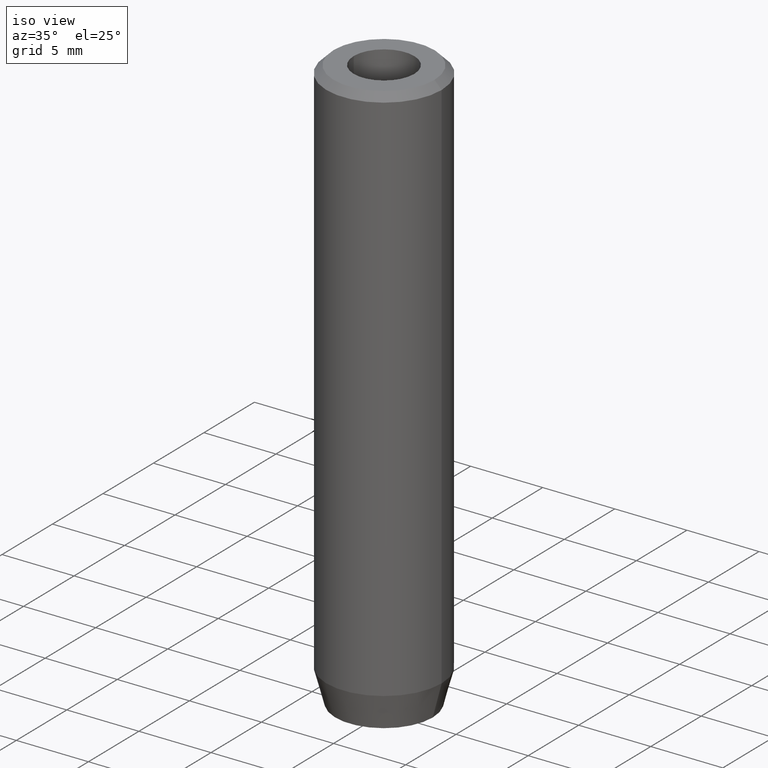
[diagram: clean part render]
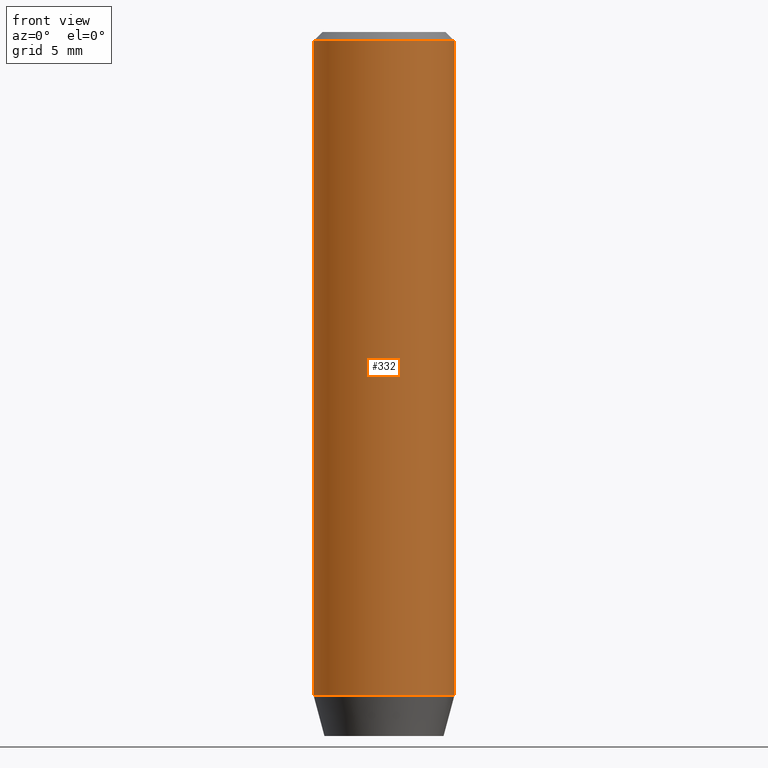
[diagram: tour spotlight — one face highlighted and labeled with its STEP entity id]
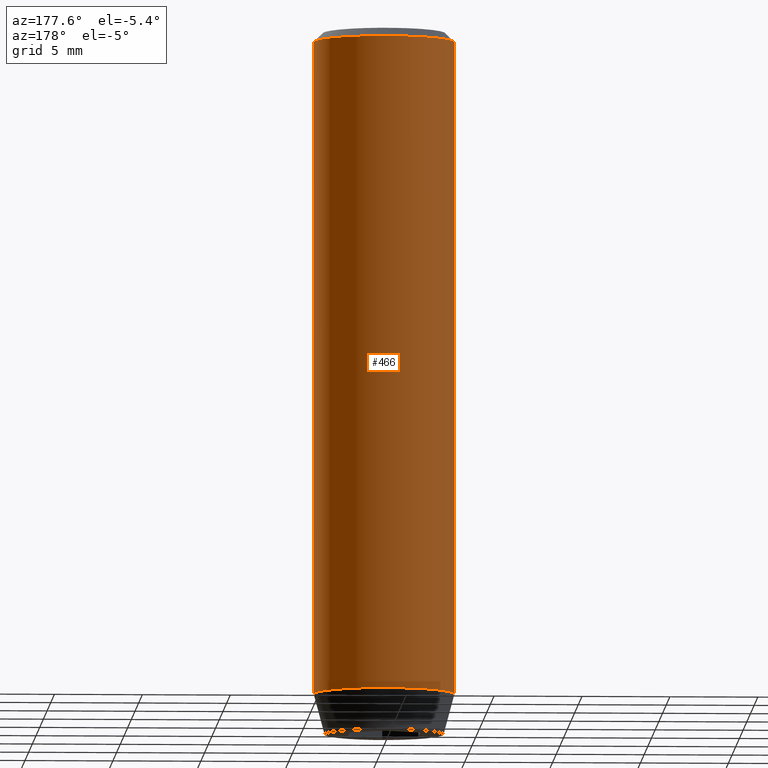
[diagram: tour spotlight — one face highlighted and labeled with its STEP entity id]
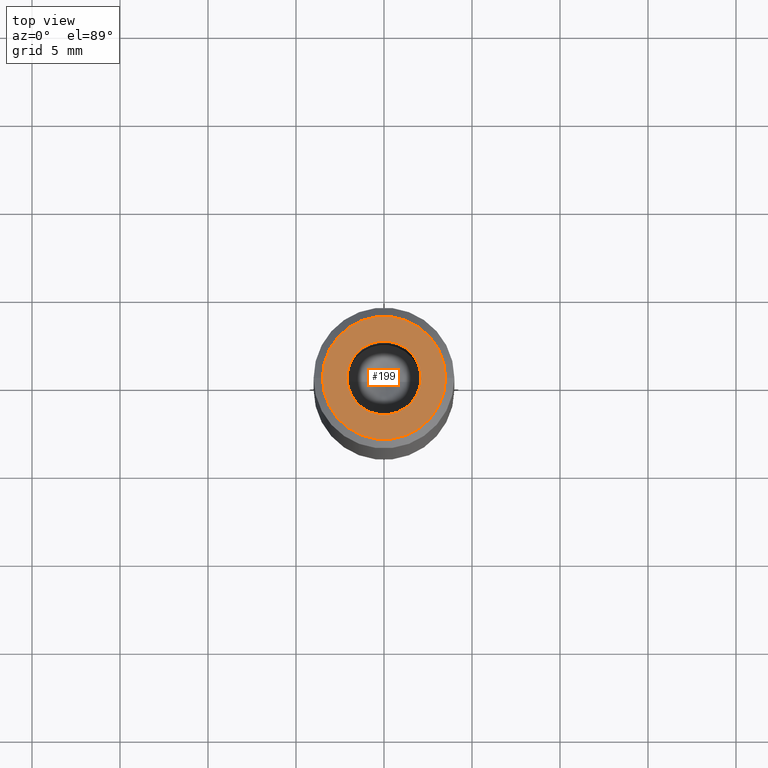
[diagram: tour spotlight — one face highlighted and labeled with its STEP entity id]
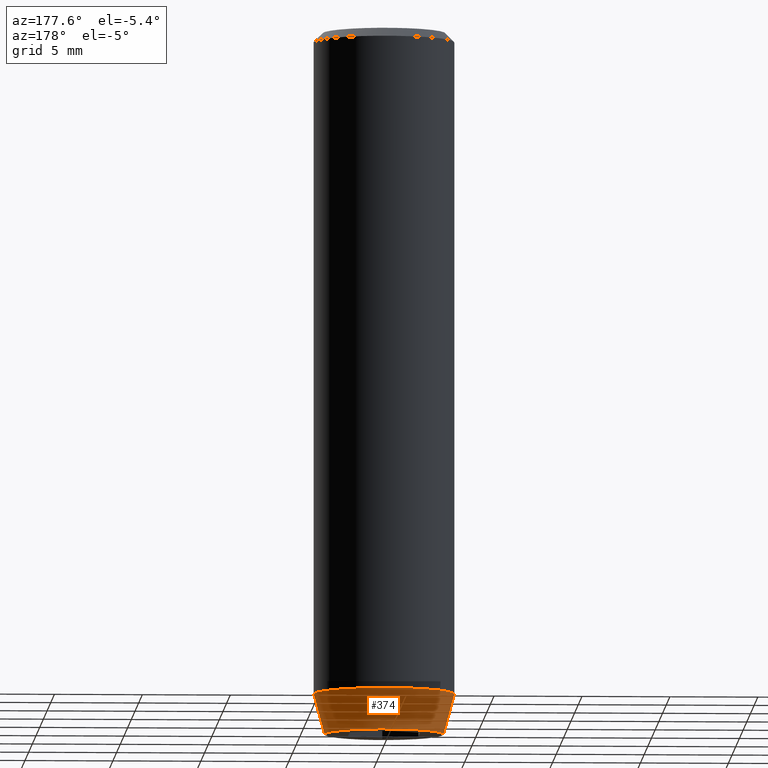
[diagram: tour spotlight — one face highlighted and labeled with its STEP entity id]
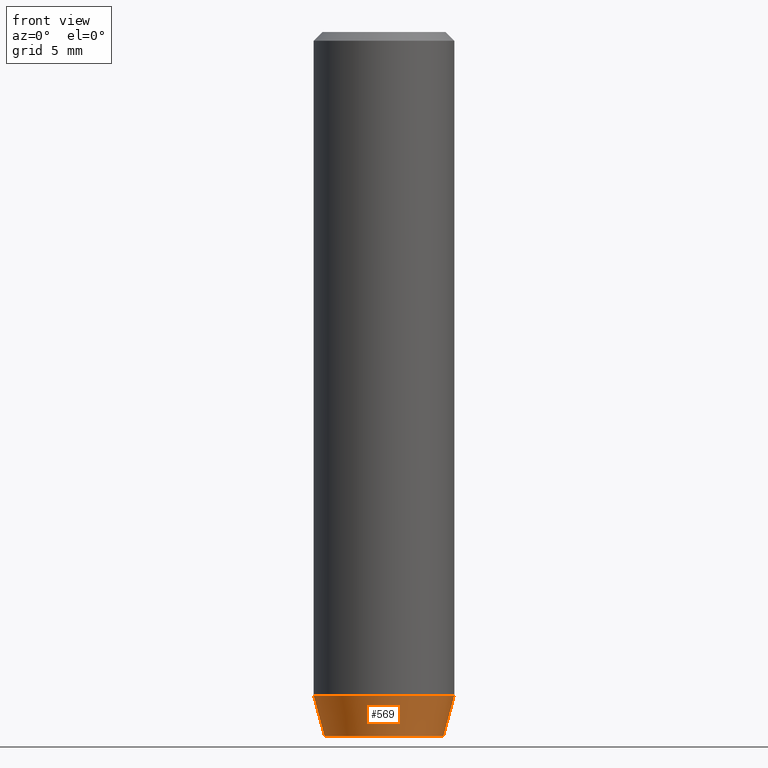
[diagram: tour spotlight — one face highlighted and labeled with its STEP entity id]
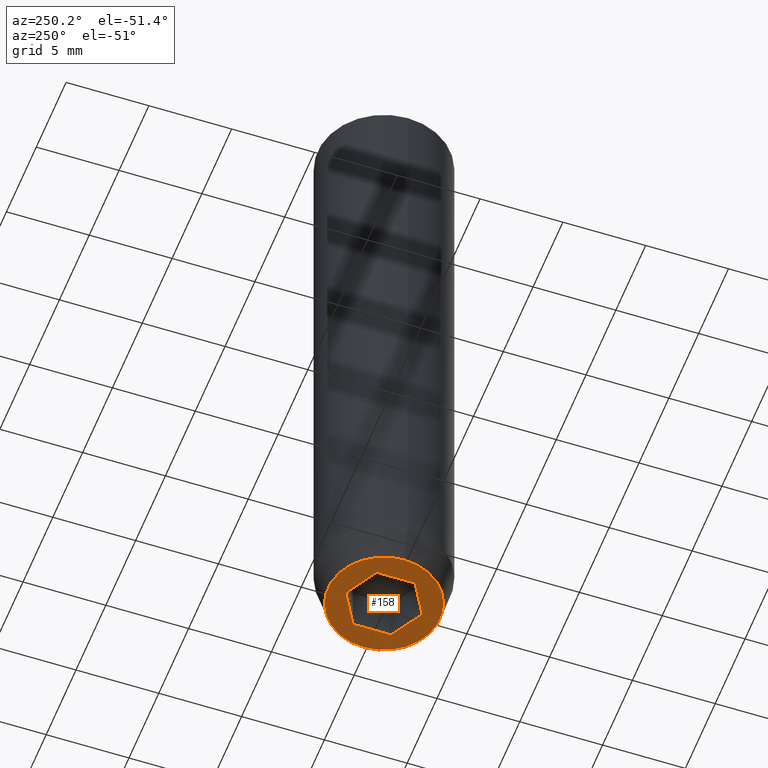
[diagram: tour spotlight — one face highlighted and labeled with its STEP entity id]
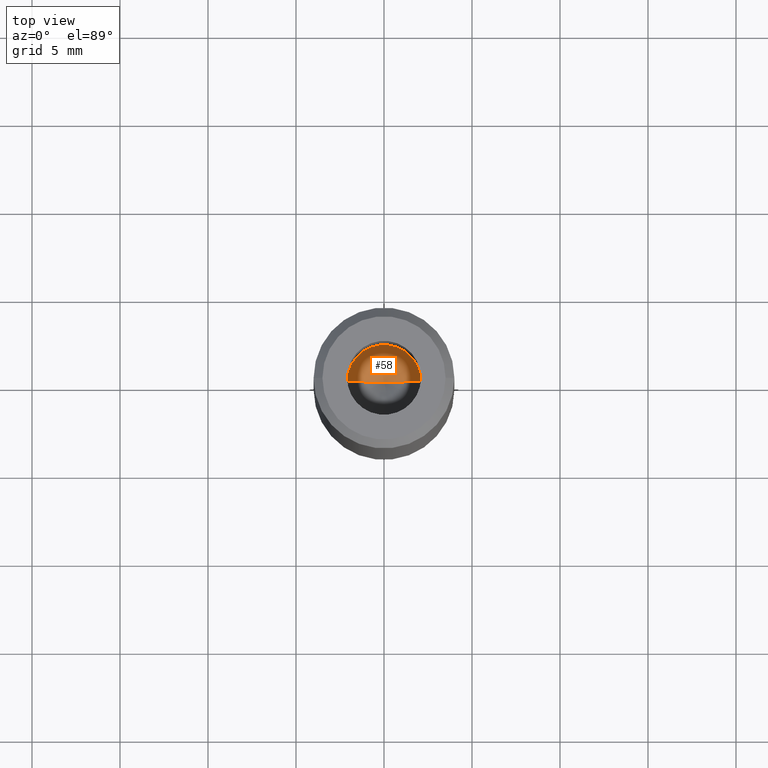
[diagram: tour spotlight — one face highlighted and labeled with its STEP entity id]
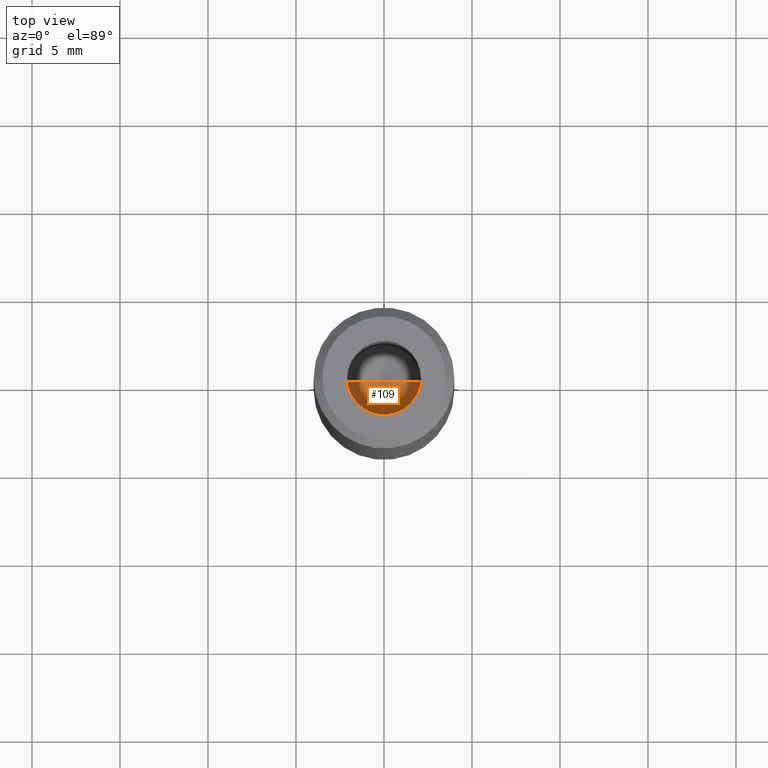
[diagram: tour spotlight — one face highlighted and labeled with its STEP entity id]
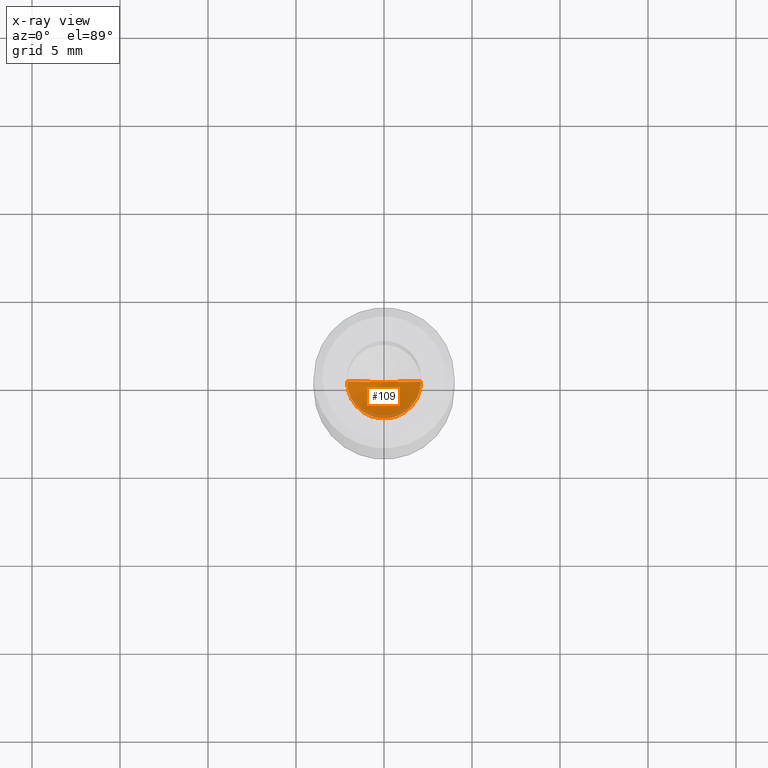
[diagram: x-ray of the same camera — body ghosted, this tour face saturated]
A machine part: a face-by-face anatomy tour. The part has 19 B-rep faces; the first image is the clean iso view, then the 8 largest visible faces are spotlighted one at a time (largest first), each with its STEP entity span.

Face 1 — front view, entity #332. In plain terms, the highlighted cylindrical surface (partial cylindrical patch) has radius 4 mm, axis along (-0, -0, 1).
Definition (entity closure, byte-faithful):
#16 = DIRECTION ( 'NONE',  ( -0.000000000000000000, -0.000000000000000000, 1.000000000000000000 ) ) ;
#30 = CARTESIAN_POINT ( 'NONE',  ( -4.000000000000000000, 4.898587196589412829E-16, -37.69999999999999574 ) ) ;
#46 = ORIENTED_EDGE ( 'NONE', *, *, #51, .T. ) ;
#48 = CARTESIAN_POINT ( 'NONE',  ( 4.000000000000000000, 0.000000000000000000, 0.000000000000000000 ) ) ;
#51 = EDGE_CURVE ( 'NONE', #262, #111, #400, .T. ) ;
#68 = DIRECTION ( 'NONE',  ( 0.000000000000000000, 0.000000000000000000, -1.000000000000000000 ) ) ;
#70 = CARTESIAN_POINT ( 'NONE',  ( -4.000000000000000000, 4.898587196589412829E-16, 0.000000000000000000 ) ) ;
#82 = EDGE_CURVE ( 'NONE', #234, #111, #206, .T. ) ;
#98 = CYLINDRICAL_SURFACE ( 'NONE', #293, 4.000000000000000000 ) ;
#111 = VERTEX_POINT ( 'NONE', #306 ) ;
#131 = LINE ( 'NONE', #48, #144 ) ;
#136 = ORIENTED_EDGE ( 'NONE', *, *, #578, .T. ) ;
#144 = VECTOR ( 'NONE', #239, 1000.000000000000000 ) ;
#178 = ORIENTED_EDGE ( 'NONE', *, *, #300, .T. ) ;
#186 = CARTESIAN_POINT ( 'NONE',  ( 0.000000000000000000, 0.000000000000000000, 0.000000000000000000 ) ) ;
#194 = AXIS2_PLACEMENT_3D ( 'NONE', #522, #302, #475 ) ;
#206 = LINE ( 'NONE', #70, #362 ) ;
#234 = VERTEX_POINT ( 'NONE', #30 ) ;
#239 = DIRECTION ( 'NONE',  ( -0.000000000000000000, -0.000000000000000000, 1.000000000000000000 ) ) ;
#262 = VERTEX_POINT ( 'NONE', #493 ) ;
#292 = DIRECTION ( 'NONE',  ( 1.000000000000000000, 0.000000000000000000, 0.000000000000000000 ) ) ;
#293 = AXIS2_PLACEMENT_3D ( 'NONE', #186, #583, #454 ) ;
#300 = EDGE_CURVE ( 'NONE', #471, #262, #131, .T. ) ;
#302 = DIRECTION ( 'NONE',  ( -0.000000000000000000, -0.000000000000000000, 1.000000000000000000 ) ) ;
#306 = CARTESIAN_POINT ( 'NONE',  ( -4.000000000000000000, 4.898587196589412829E-16, -0.4999999999999935052 ) ) ;
#310 = ORIENTED_EDGE ( 'NONE', *, *, #82, .F. ) ;
#332 = ADVANCED_FACE ( 'NONE', ( #404 ), #98, .T. ) ;
#361 = CIRCLE ( 'NONE', #194, 4.000000000000000000 ) ;
#362 = VECTOR ( 'NONE', #16, 1000.000000000000000 ) ;
#389 = CARTESIAN_POINT ( 'NONE',  ( 4.000000000000000000, 0.000000000000000000, -37.69999999999999574 ) ) ;
#400 = CIRCLE ( 'NONE', #557, 4.000000000000000000 ) ;
#404 = FACE_OUTER_BOUND ( 'NONE', #413, .T. ) ;
#413 = EDGE_LOOP ( 'NONE', ( #310, #136, #178, #46 ) ) ;
#454 = DIRECTION ( 'NONE',  ( 1.000000000000000000, 0.000000000000000000, 0.000000000000000000 ) ) ;
#469 = CARTESIAN_POINT ( 'NONE',  ( 0.000000000000000000, 0.000000000000000000, -0.4999999999999935052 ) ) ;
#471 = VERTEX_POINT ( 'NONE', #389 ) ;
#475 = DIRECTION ( 'NONE',  ( 1.000000000000000000, 0.000000000000000000, 0.000000000000000000 ) ) ;
#493 = CARTESIAN_POINT ( 'NONE',  ( 4.000000000000000000, 0.000000000000000000, -0.4999999999999935052 ) ) ;
#522 = CARTESIAN_POINT ( 'NONE',  ( 0.000000000000000000, 0.000000000000000000, -37.69999999999999574 ) ) ;
#557 = AXIS2_PLACEMENT_3D ( 'NONE', #469, #68, #292 ) ;
#578 = EDGE_CURVE ( 'NONE', #234, #471, #361, .T. ) ;
#583 = DIRECTION ( 'NONE',  ( -0.000000000000000000, -0.000000000000000000, 1.000000000000000000 ) ) ;

Face 2 — auxiliary view, entity #466. In plain terms, the highlighted cylindrical surface (partial cylindrical patch) has radius 4 mm, axis along (-0, -0, 1).
Definition (entity closure, byte-faithful):
#16 = DIRECTION ( 'NONE',  ( -0.000000000000000000, -0.000000000000000000, 1.000000000000000000 ) ) ;
#30 = CARTESIAN_POINT ( 'NONE',  ( -4.000000000000000000, 4.898587196589412829E-16, -37.69999999999999574 ) ) ;
#48 = CARTESIAN_POINT ( 'NONE',  ( 4.000000000000000000, 0.000000000000000000, 0.000000000000000000 ) ) ;
#70 = CARTESIAN_POINT ( 'NONE',  ( -4.000000000000000000, 4.898587196589412829E-16, 0.000000000000000000 ) ) ;
#82 = EDGE_CURVE ( 'NONE', #234, #111, #206, .T. ) ;
#84 = CYLINDRICAL_SURFACE ( 'NONE', #87, 4.000000000000000000 ) ;
#87 = AXIS2_PLACEMENT_3D ( 'NONE', #213, #161, #118 ) ;
#111 = VERTEX_POINT ( 'NONE', #306 ) ;
#118 = DIRECTION ( 'NONE',  ( 1.000000000000000000, 0.000000000000000000, 0.000000000000000000 ) ) ;
#128 = DIRECTION ( 'NONE',  ( 1.000000000000000000, 0.000000000000000000, 0.000000000000000000 ) ) ;
#131 = LINE ( 'NONE', #48, #144 ) ;
#144 = VECTOR ( 'NONE', #239, 1000.000000000000000 ) ;
#161 = DIRECTION ( 'NONE',  ( -0.000000000000000000, -0.000000000000000000, 1.000000000000000000 ) ) ;
#170 = CIRCLE ( 'NONE', #256, 4.000000000000000000 ) ;
#188 = EDGE_CURVE ( 'NONE', #471, #234, #170, .T. ) ;
#192 = ORIENTED_EDGE ( 'NONE', *, *, #300, .F. ) ;
#206 = LINE ( 'NONE', #70, #362 ) ;
#213 = CARTESIAN_POINT ( 'NONE',  ( 0.000000000000000000, 0.000000000000000000, 0.000000000000000000 ) ) ;
#217 = EDGE_CURVE ( 'NONE', #111, #262, #269, .T. ) ;
#234 = VERTEX_POINT ( 'NONE', #30 ) ;
#239 = DIRECTION ( 'NONE',  ( -0.000000000000000000, -0.000000000000000000, 1.000000000000000000 ) ) ;
#252 = ORIENTED_EDGE ( 'NONE', *, *, #82, .T. ) ;
#256 = AXIS2_PLACEMENT_3D ( 'NONE', #351, #440, #128 ) ;
#262 = VERTEX_POINT ( 'NONE', #493 ) ;
#269 = CIRCLE ( 'NONE', #586, 4.000000000000000000 ) ;
#300 = EDGE_CURVE ( 'NONE', #471, #262, #131, .T. ) ;
#306 = CARTESIAN_POINT ( 'NONE',  ( -4.000000000000000000, 4.898587196589412829E-16, -0.4999999999999935052 ) ) ;
#312 = CARTESIAN_POINT ( 'NONE',  ( 0.000000000000000000, 0.000000000000000000, -0.4999999999999935052 ) ) ;
#351 = CARTESIAN_POINT ( 'NONE',  ( 0.000000000000000000, 0.000000000000000000, -37.69999999999999574 ) ) ;
#357 = DIRECTION ( 'NONE',  ( 0.000000000000000000, 0.000000000000000000, -1.000000000000000000 ) ) ;
#358 = FACE_OUTER_BOUND ( 'NONE', #545, .T. ) ;
#362 = VECTOR ( 'NONE', #16, 1000.000000000000000 ) ;
#389 = CARTESIAN_POINT ( 'NONE',  ( 4.000000000000000000, 0.000000000000000000, -37.69999999999999574 ) ) ;
#417 = ORIENTED_EDGE ( 'NONE', *, *, #188, .T. ) ;
#429 = ORIENTED_EDGE ( 'NONE', *, *, #217, .T. ) ;
#440 = DIRECTION ( 'NONE',  ( -0.000000000000000000, -0.000000000000000000, 1.000000000000000000 ) ) ;
#466 = ADVANCED_FACE ( 'NONE', ( #358 ), #84, .T. ) ;
#471 = VERTEX_POINT ( 'NONE', #389 ) ;
#493 = CARTESIAN_POINT ( 'NONE',  ( 4.000000000000000000, 0.000000000000000000, -0.4999999999999935052 ) ) ;
#545 = EDGE_LOOP ( 'NONE', ( #417, #252, #429, #192 ) ) ;
#579 = DIRECTION ( 'NONE',  ( 1.000000000000000000, 0.000000000000000000, 0.000000000000000000 ) ) ;
#586 = AXIS2_PLACEMENT_3D ( 'NONE', #312, #357, #579 ) ;

Face 3 — top view, entity #199. In plain terms, the highlighted planar face has unit normal (0, -0, 1).
Definition (entity closure, byte-faithful):
#14 = ORIENTED_EDGE ( 'NONE', *, *, #120, .T. ) ;
#26 = CARTESIAN_POINT ( 'NONE',  ( 2.099999999999998757, 0.000000000000000000, -1.990051048614449116E-16 ) ) ;
#37 = CARTESIAN_POINT ( 'NONE',  ( -2.099999999999998757, 2.571758278209439985E-16, -1.990051048614449116E-16 ) ) ;
#52 = AXIS2_PLACEMENT_3D ( 'NONE', #272, #182, #137 ) ;
#80 = DIRECTION ( 'NONE',  ( -0.000000000000000000, -0.000000000000000000, 1.000000000000000000 ) ) ;
#83 = DIRECTION ( 'NONE',  ( 1.000000000000000000, 0.000000000000000000, 0.000000000000000000 ) ) ;
#102 = ORIENTED_EDGE ( 'NONE', *, *, #537, .F. ) ;
#108 = ORIENTED_EDGE ( 'NONE', *, *, #366, .F. ) ;
#110 = VERTEX_POINT ( 'NONE', #26 ) ;
#120 = EDGE_CURVE ( 'NONE', #247, #229, #303, .T. ) ;
#122 = DIRECTION ( 'NONE',  ( -0.000000000000000000, -0.000000000000000000, 1.000000000000000000 ) ) ;
#137 = DIRECTION ( 'NONE',  ( 1.000000000000000000, 0.000000000000000000, 0.000000000000000000 ) ) ;
#162 = FACE_OUTER_BOUND ( 'NONE', #399, .T. ) ;
#173 = PLANE ( 'NONE',  #244 ) ;
#176 = CARTESIAN_POINT ( 'NONE',  ( 0.000000000000000000, 0.000000000000000000, 0.000000000000000000 ) ) ;
#182 = DIRECTION ( 'NONE',  ( -0.000000000000000000, -0.000000000000000000, 1.000000000000000000 ) ) ;
#183 = AXIS2_PLACEMENT_3D ( 'NONE', #566, #122, #568 ) ;
#199 = ADVANCED_FACE ( 'NONE', ( #531, #162 ), #173, .T. ) ;
#205 = EDGE_CURVE ( 'NONE', #229, #247, #442, .T. ) ;
#214 = VERTEX_POINT ( 'NONE', #37 ) ;
#222 = CARTESIAN_POINT ( 'NONE',  ( 0.000000000000000000, 0.000000000000000000, 0.000000000000000000 ) ) ;
#229 = VERTEX_POINT ( 'NONE', #527 ) ;
#244 = AXIS2_PLACEMENT_3D ( 'NONE', #176, #348, #570 ) ;
#247 = VERTEX_POINT ( 'NONE', #582 ) ;
#249 = ORIENTED_EDGE ( 'NONE', *, *, #205, .T. ) ;
#265 = DIRECTION ( 'NONE',  ( 1.000000000000000000, 0.000000000000000000, 0.000000000000000000 ) ) ;
#272 = CARTESIAN_POINT ( 'NONE',  ( 0.000000000000000000, 0.000000000000000000, -1.990051048614449116E-16 ) ) ;
#285 = CIRCLE ( 'NONE', #183, 2.099999999999998757 ) ;
#303 = CIRCLE ( 'NONE', #528, 3.500000000000003109 ) ;
#348 = DIRECTION ( 'NONE',  ( 0.000000000000000000, -0.000000000000000000, 1.000000000000000000 ) ) ;
#366 = EDGE_CURVE ( 'NONE', #214, #110, #558, .T. ) ;
#382 = AXIS2_PLACEMENT_3D ( 'NONE', #222, #80, #265 ) ;
#399 = EDGE_LOOP ( 'NONE', ( #249, #14 ) ) ;
#442 = CIRCLE ( 'NONE', #382, 3.500000000000003109 ) ;
#461 = EDGE_LOOP ( 'NONE', ( #102, #108 ) ) ;
#474 = DIRECTION ( 'NONE',  ( -0.000000000000000000, -0.000000000000000000, 1.000000000000000000 ) ) ;
#527 = CARTESIAN_POINT ( 'NONE',  ( -3.500000000000003109, 0.000000000000000000, 0.000000000000000000 ) ) ;
#528 = AXIS2_PLACEMENT_3D ( 'NONE', #564, #474, #83 ) ;
#531 = FACE_BOUND ( 'NONE', #461, .T. ) ;
#537 = EDGE_CURVE ( 'NONE', #110, #214, #285, .T. ) ;
#558 = CIRCLE ( 'NONE', #52, 2.099999999999998757 ) ;
#564 = CARTESIAN_POINT ( 'NONE',  ( 0.000000000000000000, 0.000000000000000000, 0.000000000000000000 ) ) ;
#566 = CARTESIAN_POINT ( 'NONE',  ( 0.000000000000000000, 0.000000000000000000, -1.990051048614449116E-16 ) ) ;
#568 = DIRECTION ( 'NONE',  ( 1.000000000000000000, 0.000000000000000000, 0.000000000000000000 ) ) ;
#570 = DIRECTION ( 'NONE',  ( 1.000000000000000000, 0.000000000000000000, 0.000000000000000000 ) ) ;
#582 = CARTESIAN_POINT ( 'NONE',  ( 3.500000000000003109, 4.592425496802575944E-16, 0.000000000000000000 ) ) ;

Face 4 — auxiliary view, entity #374. In plain terms, the highlighted conical surface has half-angle 15 deg.
Definition (entity closure, byte-faithful):
#21 = CARTESIAN_POINT ( 'NONE',  ( 3.383716857408415102, 0.000000000000000000, -40.00000000000000000 ) ) ;
#30 = CARTESIAN_POINT ( 'NONE',  ( -4.000000000000000000, 4.898587196589412829E-16, -37.69999999999999574 ) ) ;
#35 = ORIENTED_EDGE ( 'NONE', *, *, #141, .T. ) ;
#38 = AXIS2_PLACEMENT_3D ( 'NONE', #135, #319, #322 ) ;
#45 = CARTESIAN_POINT ( 'NONE',  ( -3.383716857408415102, 4.521222607617784483E-16, -40.00000000000000000 ) ) ;
#57 = VERTEX_POINT ( 'NONE', #21 ) ;
#72 = CARTESIAN_POINT ( 'NONE',  ( 4.000000000000000000, 0.000000000000000000, -37.69999999999999574 ) ) ;
#86 = DIRECTION ( 'NONE',  ( -0.000000000000000000, -0.000000000000000000, 1.000000000000000000 ) ) ;
#115 = LINE ( 'NONE', #72, #250 ) ;
#116 = EDGE_LOOP ( 'NONE', ( #35, #184, #452, #395 ) ) ;
#125 = CARTESIAN_POINT ( 'NONE',  ( 0.000000000000000000, 0.000000000000000000, -40.00000000000000000 ) ) ;
#128 = DIRECTION ( 'NONE',  ( 1.000000000000000000, 0.000000000000000000, 0.000000000000000000 ) ) ;
#135 = CARTESIAN_POINT ( 'NONE',  ( 0.000000000000000000, 0.000000000000000000, -37.69999999999999574 ) ) ;
#141 = EDGE_CURVE ( 'NONE', #57, #371, #491, .T. ) ;
#154 = EDGE_CURVE ( 'NONE', #371, #234, #355, .T. ) ;
#170 = CIRCLE ( 'NONE', #256, 4.000000000000000000 ) ;
#172 = VECTOR ( 'NONE', #259, 1000.000000000000000 ) ;
#184 = ORIENTED_EDGE ( 'NONE', *, *, #154, .T. ) ;
#188 = EDGE_CURVE ( 'NONE', #471, #234, #170, .T. ) ;
#202 = AXIS2_PLACEMENT_3D ( 'NONE', #125, #86, #215 ) ;
#215 = DIRECTION ( 'NONE',  ( 1.000000000000000000, 0.000000000000000000, 0.000000000000000000 ) ) ;
#234 = VERTEX_POINT ( 'NONE', #30 ) ;
#245 = EDGE_CURVE ( 'NONE', #57, #471, #115, .T. ) ;
#250 = VECTOR ( 'NONE', #433, 1000.000000000000000 ) ;
#256 = AXIS2_PLACEMENT_3D ( 'NONE', #351, #440, #128 ) ;
#259 = DIRECTION ( 'NONE',  ( -0.2588190451025214056, 3.169619151431772953E-17, 0.9659258262890680902 ) ) ;
#319 = DIRECTION ( 'NONE',  ( -0.000000000000000000, -0.000000000000000000, 1.000000000000000000 ) ) ;
#322 = DIRECTION ( 'NONE',  ( 1.000000000000000000, 0.000000000000000000, 0.000000000000000000 ) ) ;
#351 = CARTESIAN_POINT ( 'NONE',  ( 0.000000000000000000, 0.000000000000000000, -37.69999999999999574 ) ) ;
#355 = LINE ( 'NONE', #402, #172 ) ;
#371 = VERTEX_POINT ( 'NONE', #45 ) ;
#374 = ADVANCED_FACE ( 'NONE', ( #542 ), #470, .T. ) ;
#389 = CARTESIAN_POINT ( 'NONE',  ( 4.000000000000000000, 0.000000000000000000, -37.69999999999999574 ) ) ;
#395 = ORIENTED_EDGE ( 'NONE', *, *, #245, .F. ) ;
#402 = CARTESIAN_POINT ( 'NONE',  ( -4.000000000000000000, 4.898587196589412829E-16, -37.69999999999999574 ) ) ;
#433 = DIRECTION ( 'NONE',  ( 0.2588190451025214056, 0.000000000000000000, 0.9659258262890680902 ) ) ;
#440 = DIRECTION ( 'NONE',  ( -0.000000000000000000, -0.000000000000000000, 1.000000000000000000 ) ) ;
#452 = ORIENTED_EDGE ( 'NONE', *, *, #188, .F. ) ;
#470 = CONICAL_SURFACE ( 'NONE', #38, 4.000000000000000000, 0.2617993877991501295 ) ;
#471 = VERTEX_POINT ( 'NONE', #389 ) ;
#491 = CIRCLE ( 'NONE', #202, 3.383716857408415102 ) ;
#542 = FACE_OUTER_BOUND ( 'NONE', #116, .T. ) ;

Face 5 — front view, entity #569. In plain terms, the highlighted conical surface has half-angle 15 deg.
Definition (entity closure, byte-faithful):
#21 = CARTESIAN_POINT ( 'NONE',  ( 3.383716857408415102, 0.000000000000000000, -40.00000000000000000 ) ) ;
#29 = ORIENTED_EDGE ( 'NONE', *, *, #245, .T. ) ;
#30 = CARTESIAN_POINT ( 'NONE',  ( -4.000000000000000000, 4.898587196589412829E-16, -37.69999999999999574 ) ) ;
#45 = CARTESIAN_POINT ( 'NONE',  ( -3.383716857408415102, 4.521222607617784483E-16, -40.00000000000000000 ) ) ;
#57 = VERTEX_POINT ( 'NONE', #21 ) ;
#72 = CARTESIAN_POINT ( 'NONE',  ( 4.000000000000000000, 0.000000000000000000, -37.69999999999999574 ) ) ;
#77 = DIRECTION ( 'NONE',  ( 1.000000000000000000, 0.000000000000000000, 0.000000000000000000 ) ) ;
#89 = AXIS2_PLACEMENT_3D ( 'NONE', #313, #535, #349 ) ;
#115 = LINE ( 'NONE', #72, #250 ) ;
#143 = ORIENTED_EDGE ( 'NONE', *, *, #578, .F. ) ;
#154 = EDGE_CURVE ( 'NONE', #371, #234, #355, .T. ) ;
#171 = EDGE_CURVE ( 'NONE', #371, #57, #502, .T. ) ;
#172 = VECTOR ( 'NONE', #259, 1000.000000000000000 ) ;
#194 = AXIS2_PLACEMENT_3D ( 'NONE', #522, #302, #475 ) ;
#198 = ORIENTED_EDGE ( 'NONE', *, *, #171, .T. ) ;
#234 = VERTEX_POINT ( 'NONE', #30 ) ;
#245 = EDGE_CURVE ( 'NONE', #57, #471, #115, .T. ) ;
#250 = VECTOR ( 'NONE', #433, 1000.000000000000000 ) ;
#259 = DIRECTION ( 'NONE',  ( -0.2588190451025214056, 3.169619151431772953E-17, 0.9659258262890680902 ) ) ;
#261 = FACE_OUTER_BOUND ( 'NONE', #500, .T. ) ;
#302 = DIRECTION ( 'NONE',  ( -0.000000000000000000, -0.000000000000000000, 1.000000000000000000 ) ) ;
#308 = DIRECTION ( 'NONE',  ( -0.000000000000000000, -0.000000000000000000, 1.000000000000000000 ) ) ;
#313 = CARTESIAN_POINT ( 'NONE',  ( 0.000000000000000000, 0.000000000000000000, -37.69999999999999574 ) ) ;
#349 = DIRECTION ( 'NONE',  ( 1.000000000000000000, 0.000000000000000000, 0.000000000000000000 ) ) ;
#355 = LINE ( 'NONE', #402, #172 ) ;
#361 = CIRCLE ( 'NONE', #194, 4.000000000000000000 ) ;
#371 = VERTEX_POINT ( 'NONE', #45 ) ;
#389 = CARTESIAN_POINT ( 'NONE',  ( 4.000000000000000000, 0.000000000000000000, -37.69999999999999574 ) ) ;
#393 = CARTESIAN_POINT ( 'NONE',  ( 0.000000000000000000, 0.000000000000000000, -40.00000000000000000 ) ) ;
#402 = CARTESIAN_POINT ( 'NONE',  ( -4.000000000000000000, 4.898587196589412829E-16, -37.69999999999999574 ) ) ;
#433 = DIRECTION ( 'NONE',  ( 0.2588190451025214056, 0.000000000000000000, 0.9659258262890680902 ) ) ;
#471 = VERTEX_POINT ( 'NONE', #389 ) ;
#475 = DIRECTION ( 'NONE',  ( 1.000000000000000000, 0.000000000000000000, 0.000000000000000000 ) ) ;
#500 = EDGE_LOOP ( 'NONE', ( #584, #198, #29, #143 ) ) ;
#502 = CIRCLE ( 'NONE', #575, 3.383716857408415102 ) ;
#522 = CARTESIAN_POINT ( 'NONE',  ( 0.000000000000000000, 0.000000000000000000, -37.69999999999999574 ) ) ;
#535 = DIRECTION ( 'NONE',  ( -0.000000000000000000, -0.000000000000000000, 1.000000000000000000 ) ) ;
#541 = CONICAL_SURFACE ( 'NONE', #89, 4.000000000000000000, 0.2617993877991501295 ) ;
#569 = ADVANCED_FACE ( 'NONE', ( #261 ), #541, .T. ) ;
#575 = AXIS2_PLACEMENT_3D ( 'NONE', #393, #308, #77 ) ;
#578 = EDGE_CURVE ( 'NONE', #234, #471, #361, .T. ) ;
#584 = ORIENTED_EDGE ( 'NONE', *, *, #154, .F. ) ;

Face 6 — auxiliary view, entity #158. In plain terms, the highlighted planar face has unit normal (0, 0, -1).
Definition (entity closure, byte-faithful):
#21 = CARTESIAN_POINT ( 'NONE',  ( 3.383716857408415102, 0.000000000000000000, -40.00000000000000000 ) ) ;
#33 = CARTESIAN_POINT ( 'NONE',  ( -1.999999999999998668, -1.154700538379252572, -40.00000000000000000 ) ) ;
#36 = EDGE_CURVE ( 'NONE', #360, #455, #105, .T. ) ;
#42 = CARTESIAN_POINT ( 'NONE',  ( -1.000000000000000222, -1.732050807568877637, -40.00000000000000000 ) ) ;
#45 = CARTESIAN_POINT ( 'NONE',  ( -3.383716857408415102, 4.521222607617784483E-16, -40.00000000000000000 ) ) ;
#55 = ORIENTED_EDGE ( 'NONE', *, *, #251, .F. ) ;
#57 = VERTEX_POINT ( 'NONE', #21 ) ;
#77 = DIRECTION ( 'NONE',  ( 1.000000000000000000, 0.000000000000000000, 0.000000000000000000 ) ) ;
#78 = CARTESIAN_POINT ( 'NONE',  ( -1.999999999999998224, 1.126735949052866956E-15, -40.00000000000000000 ) ) ;
#81 = DIRECTION ( 'NONE',  ( 0.8660254037844385966, -0.5000000000000001110, 0.000000000000000000 ) ) ;
#85 = EDGE_LOOP ( 'NONE', ( #138, #439 ) ) ;
#86 = DIRECTION ( 'NONE',  ( -0.000000000000000000, -0.000000000000000000, 1.000000000000000000 ) ) ;
#88 = CARTESIAN_POINT ( 'NONE',  ( 1.000000000000000444, 1.732050807568877637, -40.00000000000000000 ) ) ;
#93 = EDGE_CURVE ( 'NONE', #224, #407, #509, .T. ) ;
#96 = DIRECTION ( 'NONE',  ( 0.000000000000000000, -1.000000000000000000, 0.000000000000000000 ) ) ;
#105 = LINE ( 'NONE', #514, #409 ) ;
#113 = ORIENTED_EDGE ( 'NONE', *, *, #278, .F. ) ;
#125 = CARTESIAN_POINT ( 'NONE',  ( 0.000000000000000000, 0.000000000000000000, -40.00000000000000000 ) ) ;
#132 = VECTOR ( 'NONE', #96, 1000.000000000000000 ) ;
#138 = ORIENTED_EDGE ( 'NONE', *, *, #141, .F. ) ;
#141 = EDGE_CURVE ( 'NONE', #57, #371, #491, .T. ) ;
#158 = ADVANCED_FACE ( 'NONE', ( #207, #486 ), #567, .T. ) ;
#164 = VERTEX_POINT ( 'NONE', #33 ) ;
#171 = EDGE_CURVE ( 'NONE', #371, #57, #502, .T. ) ;
#174 = LINE ( 'NONE', #78, #453 ) ;
#177 = CARTESIAN_POINT ( 'NONE',  ( 0.000000000000000000, 2.309401076758503812, -40.00000000000000000 ) ) ;
#187 = ORIENTED_EDGE ( 'NONE', *, *, #36, .F. ) ;
#196 = CARTESIAN_POINT ( 'NONE',  ( 2.168404344971008868E-16, -2.309401076758503812, -40.00000000000000000 ) ) ;
#202 = AXIS2_PLACEMENT_3D ( 'NONE', #125, #86, #215 ) ;
#207 = FACE_BOUND ( 'NONE', #273, .T. ) ;
#215 = DIRECTION ( 'NONE',  ( 1.000000000000000000, 0.000000000000000000, 0.000000000000000000 ) ) ;
#220 = ORIENTED_EDGE ( 'NONE', *, *, #93, .F. ) ;
#224 = VERTEX_POINT ( 'NONE', #489 ) ;
#231 = VECTOR ( 'NONE', #288, 1000.000000000000114 ) ;
#232 = CARTESIAN_POINT ( 'NONE',  ( 2.000000000000000888, 1.154700538379251462, -40.00000000000000000 ) ) ;
#251 = EDGE_CURVE ( 'NONE', #267, #224, #328, .T. ) ;
#253 = DIRECTION ( 'NONE',  ( 0.8660254037844385966, 0.5000000000000001110, 0.000000000000000000 ) ) ;
#267 = VERTEX_POINT ( 'NONE', #232 ) ;
#273 = EDGE_LOOP ( 'NONE', ( #187, #533, #113, #220, #55, #336 ) ) ;
#278 = EDGE_CURVE ( 'NONE', #407, #164, #587, .T. ) ;
#281 = CARTESIAN_POINT ( 'NONE',  ( 2.000000000000000888, 0.000000000000000000, -40.00000000000000000 ) ) ;
#288 = DIRECTION ( 'NONE',  ( -0.8660254037844388186, -0.4999999999999996114, 0.000000000000000000 ) ) ;
#308 = DIRECTION ( 'NONE',  ( -0.000000000000000000, -0.000000000000000000, 1.000000000000000000 ) ) ;
#316 = CARTESIAN_POINT ( 'NONE',  ( -1.999999999999997780, 1.154700538379253238, -40.00000000000000000 ) ) ;
#328 = LINE ( 'NONE', #281, #132 ) ;
#336 = ORIENTED_EDGE ( 'NONE', *, *, #456, .F. ) ;
#360 = VERTEX_POINT ( 'NONE', #316 ) ;
#371 = VERTEX_POINT ( 'NONE', #45 ) ;
#379 = CARTESIAN_POINT ( 'NONE',  ( 0.9999999999999997780, -1.732050807568878747, -40.00000000000000000 ) ) ;
#393 = CARTESIAN_POINT ( 'NONE',  ( 0.000000000000000000, 0.000000000000000000, -40.00000000000000000 ) ) ;
#397 = DIRECTION ( 'NONE',  ( -1.000000000000000000, 0.000000000000000000, -0.000000000000000000 ) ) ;
#407 = VERTEX_POINT ( 'NONE', #196 ) ;
#409 = VECTOR ( 'NONE', #253, 1000.000000000000000 ) ;
#428 = VECTOR ( 'NONE', #81, 1000.000000000000000 ) ;
#437 = DIRECTION ( 'NONE',  ( 0.000000000000000000, 0.000000000000000000, -1.000000000000000000 ) ) ;
#439 = ORIENTED_EDGE ( 'NONE', *, *, #171, .F. ) ;
#453 = VECTOR ( 'NONE', #478, 1000.000000000000000 ) ;
#455 = VERTEX_POINT ( 'NONE', #177 ) ;
#456 = EDGE_CURVE ( 'NONE', #455, #267, #524, .T. ) ;
#478 = DIRECTION ( 'NONE',  ( 5.633679745264339711E-16, 1.000000000000000000, 0.000000000000000000 ) ) ;
#486 = FACE_OUTER_BOUND ( 'NONE', #85, .T. ) ;
#489 = CARTESIAN_POINT ( 'NONE',  ( 2.000000000000000888, -1.154700538379252572, -40.00000000000000000 ) ) ;
#491 = CIRCLE ( 'NONE', #202, 3.383716857408415102 ) ;
#502 = CIRCLE ( 'NONE', #575, 3.383716857408415102 ) ;
#503 = DIRECTION ( 'NONE',  ( -0.8660254037844387076, 0.5000000000000001110, 0.000000000000000000 ) ) ;
#509 = LINE ( 'NONE', #379, #231 ) ;
#512 = VECTOR ( 'NONE', #503, 999.9999999999998863 ) ;
#514 = CARTESIAN_POINT ( 'NONE',  ( -1.000000000000000444, 1.732050807568877637, -40.00000000000000000 ) ) ;
#519 = EDGE_CURVE ( 'NONE', #164, #360, #174, .T. ) ;
#523 = CARTESIAN_POINT ( 'NONE',  ( 0.000000000000000000, 3.383716857408415102, -40.00000000000000000 ) ) ;
#524 = LINE ( 'NONE', #88, #428 ) ;
#530 = AXIS2_PLACEMENT_3D ( 'NONE', #523, #437, #397 ) ;
#533 = ORIENTED_EDGE ( 'NONE', *, *, #519, .F. ) ;
#567 = PLANE ( 'NONE',  #530 ) ;
#575 = AXIS2_PLACEMENT_3D ( 'NONE', #393, #308, #77 ) ;
#587 = LINE ( 'NONE', #42, #512 ) ;

Face 7 — top view, entity #58. In plain terms, the highlighted conical surface has half-angle 59 deg.
Definition (entity closure, byte-faithful):
#53 = DIRECTION ( 'NONE',  ( -0.000000000000000000, -0.000000000000000000, 1.000000000000000000 ) ) ;
#58 = ADVANCED_FACE ( 'NONE', ( #473 ), #380, .F. ) ;
#69 = DIRECTION ( 'NONE',  ( -0.000000000000000000, -0.000000000000000000, 1.000000000000000000 ) ) ;
#90 = CARTESIAN_POINT ( 'NONE',  ( 2.099999999999996980, 0.000000000000000000, -12.50000000000000000 ) ) ;
#159 = VECTOR ( 'NONE', #168, 1000.000000000000000 ) ;
#168 = DIRECTION ( 'NONE',  ( -0.8571673007021116675, 1.049727191138617833E-16, 0.5150380749100552658 ) ) ;
#179 = DIRECTION ( 'NONE',  ( 0.8571673007021116675, 0.000000000000000000, 0.5150380749100552658 ) ) ;
#197 = VERTEX_POINT ( 'NONE', #443 ) ;
#226 = CARTESIAN_POINT ( 'NONE',  ( -2.099999999999996980, 2.571758278209438013E-16, -12.50000000000000000 ) ) ;
#233 = CIRCLE ( 'NONE', #401, 2.099999999999996980 ) ;
#238 = ORIENTED_EDGE ( 'NONE', *, *, #291, .T. ) ;
#280 = ORIENTED_EDGE ( 'NONE', *, *, #339, .T. ) ;
#284 = VERTEX_POINT ( 'NONE', #226 ) ;
#291 = EDGE_CURVE ( 'NONE', #197, #284, #233, .T. ) ;
#304 = VECTOR ( 'NONE', #179, 1000.000000000000000 ) ;
#339 = EDGE_CURVE ( 'NONE', #547, #197, #373, .T. ) ;
#342 = ORIENTED_EDGE ( 'NONE', *, *, #498, .F. ) ;
#367 = DIRECTION ( 'NONE',  ( 1.000000000000000000, 0.000000000000000000, 0.000000000000000000 ) ) ;
#373 = LINE ( 'NONE', #90, #304 ) ;
#380 = CONICAL_SURFACE ( 'NONE', #463, 2.099999999999996980, 1.029744258676653201 ) ;
#385 = DIRECTION ( 'NONE',  ( 1.000000000000000000, 0.000000000000000000, 0.000000000000000000 ) ) ;
#394 = LINE ( 'NONE', #438, #159 ) ;
#401 = AXIS2_PLACEMENT_3D ( 'NONE', #406, #53, #367 ) ;
#406 = CARTESIAN_POINT ( 'NONE',  ( 0.000000000000000000, 0.000000000000000000, -12.50000000000000000 ) ) ;
#431 = CARTESIAN_POINT ( 'NONE',  ( 0.000000000000000000, 0.000000000000000000, -12.50000000000000000 ) ) ;
#438 = CARTESIAN_POINT ( 'NONE',  ( -2.099999999999996980, 2.571758278209438013E-16, -12.50000000000000000 ) ) ;
#443 = CARTESIAN_POINT ( 'NONE',  ( 2.099999999999996980, 0.000000000000000000, -12.50000000000000000 ) ) ;
#463 = AXIS2_PLACEMENT_3D ( 'NONE', #431, #69, #385 ) ;
#473 = FACE_OUTER_BOUND ( 'NONE', #496, .T. ) ;
#484 = CARTESIAN_POINT ( 'NONE',  ( -3.370670652075219192E-15, 0.000000000000000000, -13.76180729995787644 ) ) ;
#496 = EDGE_LOOP ( 'NONE', ( #342, #280, #238 ) ) ;
#498 = EDGE_CURVE ( 'NONE', #547, #284, #394, .T. ) ;
#547 = VERTEX_POINT ( 'NONE', #484 ) ;

Face 8 — top view, entity #109. An x-ray twin of the same camera follows (body ghosted, this face saturated) — the face is partly hidden behind the body. In plain terms, the highlighted conical surface has half-angle 59 deg.
Definition (entity closure, byte-faithful):
#9 = ORIENTED_EDGE ( 'NONE', *, *, #339, .F. ) ;
#90 = CARTESIAN_POINT ( 'NONE',  ( 2.099999999999996980, 0.000000000000000000, -12.50000000000000000 ) ) ;
#109 = ADVANCED_FACE ( 'NONE', ( #200 ), #152, .F. ) ;
#112 = CIRCLE ( 'NONE', #327, 2.099999999999996980 ) ;
#123 = ORIENTED_EDGE ( 'NONE', *, *, #498, .T. ) ;
#152 = CONICAL_SURFACE ( 'NONE', #477, 2.099999999999996980, 1.029744258676653201 ) ;
#157 = ORIENTED_EDGE ( 'NONE', *, *, #260, .T. ) ;
#159 = VECTOR ( 'NONE', #168, 1000.000000000000000 ) ;
#168 = DIRECTION ( 'NONE',  ( -0.8571673007021116675, 1.049727191138617833E-16, 0.5150380749100552658 ) ) ;
#179 = DIRECTION ( 'NONE',  ( 0.8571673007021116675, 0.000000000000000000, 0.5150380749100552658 ) ) ;
#197 = VERTEX_POINT ( 'NONE', #443 ) ;
#200 = FACE_OUTER_BOUND ( 'NONE', #539, .T. ) ;
#212 = DIRECTION ( 'NONE',  ( 1.000000000000000000, 0.000000000000000000, 0.000000000000000000 ) ) ;
#218 = DIRECTION ( 'NONE',  ( -0.000000000000000000, -0.000000000000000000, 1.000000000000000000 ) ) ;
#226 = CARTESIAN_POINT ( 'NONE',  ( -2.099999999999996980, 2.571758278209438013E-16, -12.50000000000000000 ) ) ;
#260 = EDGE_CURVE ( 'NONE', #284, #197, #112, .T. ) ;
#284 = VERTEX_POINT ( 'NONE', #226 ) ;
#304 = VECTOR ( 'NONE', #179, 1000.000000000000000 ) ;
#327 = AXIS2_PLACEMENT_3D ( 'NONE', #446, #546, #364 ) ;
#339 = EDGE_CURVE ( 'NONE', #547, #197, #373, .T. ) ;
#364 = DIRECTION ( 'NONE',  ( 1.000000000000000000, 0.000000000000000000, 0.000000000000000000 ) ) ;
#373 = LINE ( 'NONE', #90, #304 ) ;
#394 = LINE ( 'NONE', #438, #159 ) ;
#438 = CARTESIAN_POINT ( 'NONE',  ( -2.099999999999996980, 2.571758278209438013E-16, -12.50000000000000000 ) ) ;
#443 = CARTESIAN_POINT ( 'NONE',  ( 2.099999999999996980, 0.000000000000000000, -12.50000000000000000 ) ) ;
#446 = CARTESIAN_POINT ( 'NONE',  ( 0.000000000000000000, 0.000000000000000000, -12.50000000000000000 ) ) ;
#476 = CARTESIAN_POINT ( 'NONE',  ( 0.000000000000000000, 0.000000000000000000, -12.50000000000000000 ) ) ;
#477 = AXIS2_PLACEMENT_3D ( 'NONE', #476, #218, #212 ) ;
#484 = CARTESIAN_POINT ( 'NONE',  ( -3.370670652075219192E-15, 0.000000000000000000, -13.76180729995787644 ) ) ;
#498 = EDGE_CURVE ( 'NONE', #547, #284, #394, .T. ) ;
#539 = EDGE_LOOP ( 'NONE', ( #9, #123, #157 ) ) ;
#546 = DIRECTION ( 'NONE',  ( -0.000000000000000000, -0.000000000000000000, 1.000000000000000000 ) ) ;
#547 = VERTEX_POINT ( 'NONE', #484 ) ;